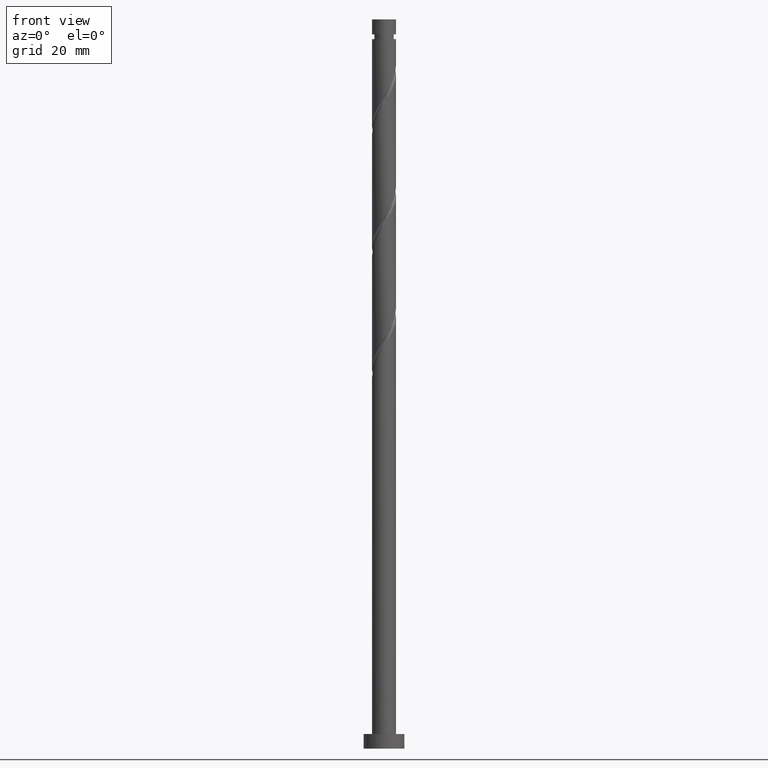
[diagram: clean part render]
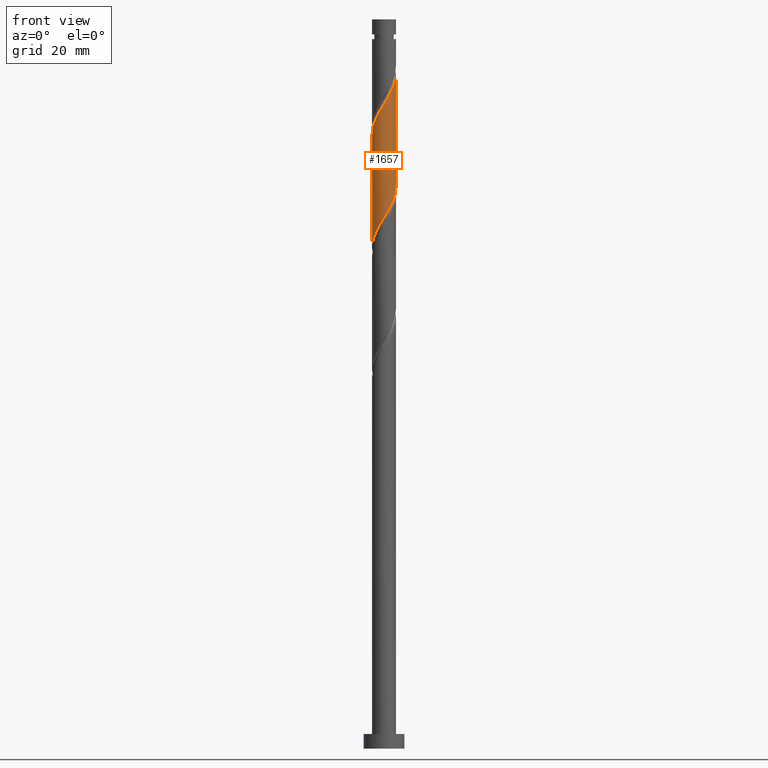
[diagram: same view with one face highlighted and labeled with its STEP entity id]
A machine part, front view. The second image highlights one B-rep face of the part: STEP entity #1657.
In plain terms, the highlighted cylindrical surface (edge-blend (fillet) strip) has radius 4.1 mm, axis along (-0, -0, -1).
Its self-contained STEP definition (entity closure, byte-faithful):
#42 = CARTESIAN_POINT ( 'NONE',  ( 3.770227348058453387, -1.611020094211170983, 228.8239447772564858 ) ) ;
#47 = CARTESIAN_POINT ( 'NONE',  ( -4.099999999999999645, -7.582660836376372050E-15, 171.6582769095586229 ) ) ;
#53 = CARTESIAN_POINT ( 'NONE',  ( 0.3280161698403854520, -4.117066945273676559, 221.6124063157180331 ) ) ;
#68 = EDGE_CURVE ( 'NONE', #551, #1423, #1545, .T. ) ;
#174 = CARTESIAN_POINT ( 'NONE',  ( -3.890359620423026410, -1.294257325179983154, 212.7983037516154070 ) ) ;
#185 = CARTESIAN_POINT ( 'NONE',  ( -2.843270998262978466, -2.953948210520402906, 216.0034319567436398 ) ) ;
#202 = CARTESIAN_POINT ( 'NONE',  ( 2.975644005604637599, -2.864153904986787680, 226.4200986234102970 ) ) ;
#211 = CARTESIAN_POINT ( 'NONE',  ( -4.099999999999999645, -7.582660836376372050E-15, 171.6582769095586229 ) ) ;
#215 = CARTESIAN_POINT ( 'NONE',  ( 0.1693889124970829885, -4.096499407582411045, 182.3495858028975078 ) ) ;
#223 = CARTESIAN_POINT ( 'NONE',  ( -3.574614093208416055, -2.068808576011227363, 175.1380473413590835 ) ) ;
#292 =( BOUNDED_CURVE ( )  B_SPLINE_CURVE ( 2, ( #1017, #1707, #1599, #1185, #312, #887, #1582, #462, #898, #1045, #1611, #1467, #1142, #423, #215, #617, #1357, #1204, #370, #768, #1497, #1213, #1774, #223, #1782, #1332, #333, #785, #47 ),
 .UNSPECIFIED., .F., .T. ) 
 B_SPLINE_CURVE_WITH_KNOTS ( ( 3, 2, 2, 2, 2, 2, 2, 2, 2, 2, 2, 2, 2, 2, 3 ),
 ( 0.5545271625973833274, 0.5576923076923077094, 0.5673076923076922906, 0.5769230769230768718, 0.5865384615384615641, 0.5961538461538461453, 0.6057692307692307265, 0.6153846153846154188, 0.6250000000000000000, 0.6346153846153845812, 0.6442307692307692735, 0.6538461538461538547, 0.6634615384615384359, 0.6730769230769231282, 0.6795271625973833274 ),
 .UNSPECIFIED. ) 
 CURVE ( )  GEOMETRIC_REPRESENTATION_ITEM ( )  RATIONAL_B_SPLINE_CURVE ( ( 0.9061636035682806289, 0.9069090390690692782, 0.9090909090909258250, 0.9024626128164292549, 0.9090909090909258250, 0.9024626128164292549, 0.9090909090909258250, 0.9024626128164292549, 0.9090909090909258250, 0.9024626128164292549, 0.9090909090909258250, 0.9024626128164292549, 0.9090909090909258250, 0.9024626128164292549, 0.9090909090909258250, 0.9024626128164292549, 0.9090909090909258250, 0.9024626128164292549, 0.9090909090909258250, 0.9024626128164292549, 0.9090909090909258250, 0.9024626128164292549, 0.9090909090909258250, 0.9024626128164292549, 0.9090909090909258250, 0.9024626128164292549, 0.9090909090909258250, 0.9046444828382858017, 0.9061636035682806289 ) ) 
 REPRESENTATION_ITEM ( '' )  );
#294 = EDGE_LOOP ( 'NONE', ( #1618, #1550, #326, #675 ) ) ;
#308 = CARTESIAN_POINT ( 'NONE',  ( 3.275129049406527493, -2.466481240499011296, 227.2213806746923694 ) ) ;
#312 = CARTESIAN_POINT ( 'NONE',  ( 3.890359620423019749, -1.294257325179984930, 190.3624063157180046 ) ) ;
#318 = FACE_OUTER_BOUND ( 'NONE', #294, .T. ) ;
#326 = ORIENTED_EDGE ( 'NONE', *, *, #1811, .T. ) ;
#333 = CARTESIAN_POINT ( 'NONE',  ( -4.046213737460023552, -0.6619323158675554097, 172.7342011875128662 ) ) ;
#370 = CARTESIAN_POINT ( 'NONE',  ( -1.753751765717731059, -3.705989037253339280, 179.1444575977692750 ) ) ;
#423 = CARTESIAN_POINT ( 'NONE',  ( 0.6667939948345544821, -4.075931869891155301, 183.1508678541796371 ) ) ;
#446 = CARTESIAN_POINT ( 'NONE',  ( 2.203740304420987339, -3.493045019780359972, 224.8175345208462375 ) ) ;
#457 = CARTESIAN_POINT ( 'NONE',  ( -4.100000000000003197, -0.1630698343807793771, 210.9332707400745051 ) ) ;
#462 = CARTESIAN_POINT ( 'NONE',  ( 3.201945248320207327, -2.608712607072974698, 187.9585601618719011 ) ) ;
#468 = CARTESIAN_POINT ( 'NONE',  ( -3.467576788759973994, -2.187672556406262014, 214.4008678541796087 ) ) ;
#496 = DIRECTION ( 'NONE',  ( -1.000000000000000000, 0.000000000000000000, 0.000000000000000000 ) ) ;
#551 = VERTEX_POINT ( 'NONE', #1114 ) ;
#591 = CARTESIAN_POINT ( 'NONE',  ( 1.753751765717729949, -3.705989037253346829, 224.0162524695641650 ) ) ;
#601 = CARTESIAN_POINT ( 'NONE',  ( 4.046213737460028881, -0.6619323158675585184, 230.4265088798205170 ) ) ;
#613 = CARTESIAN_POINT ( 'NONE',  ( 3.574614093208418719, -2.068808576011233580, 228.0226627259743850 ) ) ;
#617 = CARTESIAN_POINT ( 'NONE',  ( -0.3280161698403883941, -4.117066945273671230, 181.5483037516154354 ) ) ;
#631 = CYLINDRICAL_SURFACE ( 'NONE', #672, 4.099999999999999645 ) ;
#655 = DIRECTION ( 'NONE',  ( -0.000000000000000000, -0.000000000000000000, -1.000000000000000000 ) ) ;
#672 = AXIS2_PLACEMENT_3D ( 'NONE', #1493, #1059, #496 ) ;
#675 = ORIENTED_EDGE ( 'NONE', *, *, #1035, .F. ) ;
#722 = CARTESIAN_POINT ( 'NONE',  ( -3.733208329199735331, -1.766632505739548664, 213.5995858028974794 ) ) ;
#732 = CARTESIAN_POINT ( 'NONE',  ( 1.303763227014473003, -3.918933054726334131, 223.2149704182821210 ) ) ;
#742 = CARTESIAN_POINT ( 'NONE',  ( -4.099999999999999645, 0.000000000000000000, 250.0000000000000000 ) ) ;
#743 = CARTESIAN_POINT ( 'NONE',  ( -0.1693889124970866800, -4.096499407582417263, 220.8111242644359606 ) ) ;
#759 = VECTOR ( 'NONE', #655, 1000.000000000000000 ) ;
#768 = CARTESIAN_POINT ( 'NONE',  ( -2.203740304420987339, -3.493045019780353311, 178.3431755464872595 ) ) ;
#785 = CARTESIAN_POINT ( 'NONE',  ( -4.100000000000000533, -0.3331513980018844800, 172.1979776469069350 ) ) ;
#844 = VERTEX_POINT ( 'NONE', #1620 ) ;
#880 = CARTESIAN_POINT ( 'NONE',  ( -4.100000000000004974, -4.217574666386827299E-15, 210.6690998244415312 ) ) ;
#887 = CARTESIAN_POINT ( 'NONE',  ( 3.733208329199730002, -1.766632505739546888, 189.5611242644359606 ) ) ;
#898 = CARTESIAN_POINT ( 'NONE',  ( 2.843270998262973581, -2.953948210520399797, 187.1572781105897718 ) ) ;
#903 = CARTESIAN_POINT ( 'NONE',  ( -2.484596748205744721, -3.299183813967830226, 216.8047140080257407 ) ) ;
#922 = VECTOR ( 'NONE', #1314, 1000.000000000000000 ) ;
#1017 = CARTESIAN_POINT ( 'NONE',  ( 4.099999999999999645, 5.907595720648257465E-15, 192.4916102428919373 ) ) ;
#1027 = CARTESIAN_POINT ( 'NONE',  ( 4.100000000000004974, -1.974183886393834147E-15, 231.5024331577748171 ) ) ;
#1035 = EDGE_CURVE ( 'NONE', #844, #1815, #292, .T. ) ;
#1045 = CARTESIAN_POINT ( 'NONE',  ( 2.484596748205738059, -3.299183813967828005, 186.3559960593077847 ) ) ;
#1059 = DIRECTION ( 'NONE',  ( -0.000000000000000000, -0.000000000000000000, -1.000000000000000000 ) ) ;
#1114 = CARTESIAN_POINT ( 'NONE',  ( -4.100000000000004974, -4.217574666386827299E-15, 210.6690998244415312 ) ) ;
#1142 = CARTESIAN_POINT ( 'NONE',  ( 1.144823255530912576, -3.936925159765625182, 183.9521499054615674 ) ) ;
#1168 = CARTESIAN_POINT ( 'NONE',  ( -2.053724632216508805, -3.548551131803965308, 217.6059960593078131 ) ) ;
#1179 = CARTESIAN_POINT ( 'NONE',  ( 4.100000000000004974, -1.974183886393834147E-15, 231.5024331577748171 ) ) ;
#1185 = CARTESIAN_POINT ( 'NONE',  ( 4.047510911646313936, -0.8218821446204198633, 191.1636883670000771 ) ) ;
#1200 = CARTESIAN_POINT ( 'NONE',  ( 2.589692155012813135, -3.178599462383571606, 225.6188165721282815 ) ) ;
#1204 = CARTESIAN_POINT ( 'NONE',  ( -1.303763227014474779, -3.918933054726328802, 179.9457396490513474 ) ) ;
#1213 = CARTESIAN_POINT ( 'NONE',  ( -2.975644005604635378, -2.864153904986782795, 176.7406114439231715 ) ) ;
#1233 = CARTESIAN_POINT ( 'NONE',  ( 4.099999999999999645, 5.021051876504147385E-16, 250.0000000000000000 ) ) ;
#1251 = EDGE_CURVE ( 'NONE', #1423, #844, #1797, .T. ) ;
#1305 = CARTESIAN_POINT ( 'NONE',  ( 4.100000000000004974, -0.3331513980018917520, 230.9627324204265335 ) ) ;
#1314 = DIRECTION ( 'NONE',  ( -0.000000000000000000, -0.000000000000000000, -1.000000000000000000 ) ) ;
#1315 = CARTESIAN_POINT ( 'NONE',  ( 0.8158896984274300879, -4.018000000000004235, 222.4136883669999918 ) ) ;
#1324 = CARTESIAN_POINT ( 'NONE',  ( -0.6667939948345587009, -4.075931869891159742, 220.0098422131538882 ) ) ;
#1332 = CARTESIAN_POINT ( 'NONE',  ( -3.965840602908480950, -1.153231612411107054, 173.5354832387949386 ) ) ;
#1357 = CARTESIAN_POINT ( 'NONE',  ( -0.8158896984274305320, -4.017999999999998906, 180.7470217003333914 ) ) ;
#1423 = VERTEX_POINT ( 'NONE', #1027 ) ;
#1437 = CARTESIAN_POINT ( 'NONE',  ( -4.087048891828945152, -0.3256245626482061062, 211.1957396490513474 ) ) ;
#1463 = CARTESIAN_POINT ( 'NONE',  ( -3.201945248320212656, -2.608712607072976031, 215.2021499054616243 ) ) ;
#1467 = CARTESIAN_POINT ( 'NONE',  ( 1.622852516227270225, -3.797918449640097727, 184.7534319567436398 ) ) ;
#1482 = CARTESIAN_POINT ( 'NONE',  ( -1.622852516227273778, -3.797918449640103500, 218.4072781105898287 ) ) ;
#1493 = CARTESIAN_POINT ( 'NONE',  ( 0.000000000000000000, 0.000000000000000000, 250.0000000000000000 ) ) ;
#1497 = CARTESIAN_POINT ( 'NONE',  ( -2.589692155012810471, -3.178599462383566721, 177.5418934952051870 ) ) ;
#1545 =( BOUNDED_CURVE ( )  B_SPLINE_CURVE ( 2, ( #880, #457, #1437, #1594, #174, #722, #468, #1463, #185, #903, #1168, #1482, #1730, #1324, #743, #53, #1315, #732, #591, #446, #1200, #202, #308, #613, #42, #1760, #601, #1305, #1179 ),
 .UNSPECIFIED., .F., .T. ) 
 B_SPLINE_CURVE_WITH_KNOTS ( ( 3, 2, 2, 2, 2, 2, 2, 2, 2, 2, 2, 2, 2, 2, 3 ),
 ( 0.5545271625973838825, 0.5576923076923077094, 0.5673076923076922906, 0.5769230769230768718, 0.5865384615384615641, 0.5961538461538461453, 0.6057692307692308376, 0.6153846153846154188, 0.6250000000000000000, 0.6346153846153845812, 0.6442307692307691624, 0.6538461538461538547, 0.6634615384615384359, 0.6730769230769231282, 0.6795271625973832164 ),
 .UNSPECIFIED. ) 
 CURVE ( )  GEOMETRIC_REPRESENTATION_ITEM ( )  RATIONAL_B_SPLINE_CURVE ( ( 0.9061636035682869572, 0.9069090390690757175, 0.9090909090909319312, 0.9024626128164353611, 0.9090909090909319312, 0.9024626128164353611, 0.9090909090909319312, 0.9024626128164353611, 0.9090909090909319312, 0.9024626128164353611, 0.9090909090909319312, 0.9024626128164353611, 0.9090909090909319312, 0.9024626128164353611, 0.9090909090909319312, 0.9024626128164353611, 0.9090909090909319312, 0.9024626128164353611, 0.9090909090909319312, 0.9024626128164353611, 0.9090909090909319312, 0.9024626128164353611, 0.9090909090909319312, 0.9024626128164353611, 0.9090909090909319312, 0.9024626128164353611, 0.9090909090909319312, 0.9046444828382920189, 0.9061636035682867352 ) ) 
 REPRESENTATION_ITEM ( '' )  );
#1550 = ORIENTED_EDGE ( 'NONE', *, *, #68, .F. ) ;
#1582 = CARTESIAN_POINT ( 'NONE',  ( 3.467576788759967776, -2.187672556406260682, 188.7598422131538598 ) ) ;
#1594 = CARTESIAN_POINT ( 'NONE',  ( -4.047510911646318377, -0.8218821446204194192, 211.9970217003333914 ) ) ;
#1599 = CARTESIAN_POINT ( 'NONE',  ( 4.087048891828938046, -0.3256245626482099920, 191.9649704182820926 ) ) ;
#1604 = LINE ( 'NONE', #742, #922 ) ;
#1611 = CARTESIAN_POINT ( 'NONE',  ( 2.053724632216503476, -3.548551131803962200, 185.5547140080257122 ) ) ;
#1618 = ORIENTED_EDGE ( 'NONE', *, *, #1251, .F. ) ;
#1620 = CARTESIAN_POINT ( 'NONE',  ( 4.099999999999999645, 5.907595720648257465E-15, 192.4916102428919373 ) ) ;
#1657 = ADVANCED_FACE ( 'NONE', ( #318 ), #631, .T. ) ;
#1707 = CARTESIAN_POINT ( 'NONE',  ( 4.099999999999999645, -0.1630698343807543693, 192.2274393272589919 ) ) ;
#1730 = CARTESIAN_POINT ( 'NONE',  ( -1.144823255530915906, -3.936925159765630511, 219.2085601618718158 ) ) ;
#1760 = CARTESIAN_POINT ( 'NONE',  ( 3.965840602908485391, -1.153231612411111495, 229.6252268285385583 ) ) ;
#1774 = CARTESIAN_POINT ( 'NONE',  ( -3.275129049406524828, -2.466481240499003746, 175.9393293926410422 ) ) ;
#1782 = CARTESIAN_POINT ( 'NONE',  ( -3.770227348058447170, -1.611020094211167875, 174.3367652900769826 ) ) ;
#1797 = LINE ( 'NONE', #1233, #759 ) ;
#1811 = EDGE_CURVE ( 'NONE', #551, #1815, #1604, .T. ) ;
#1815 = VERTEX_POINT ( 'NONE', #211 ) ;